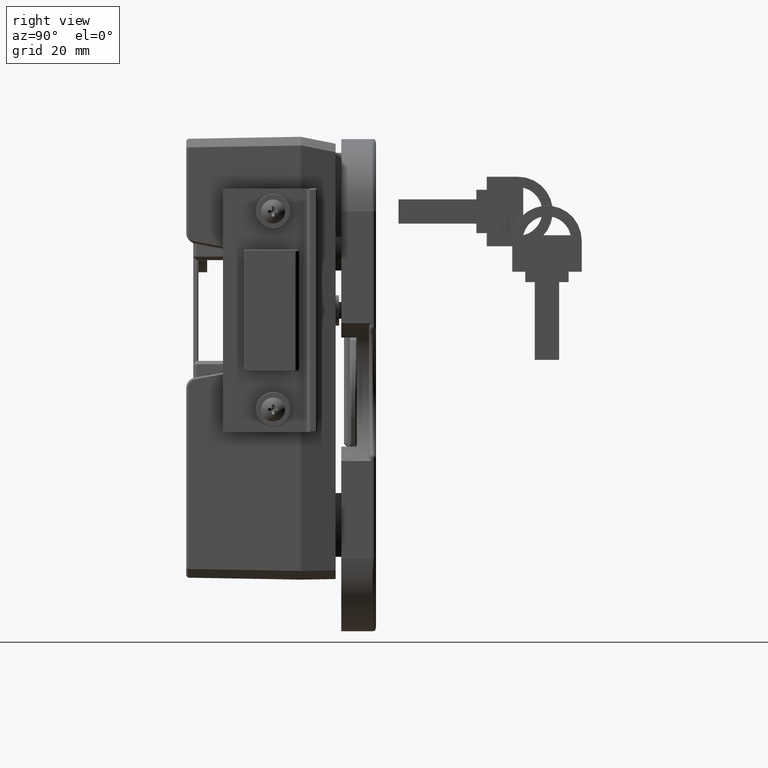
[diagram: clean part render]
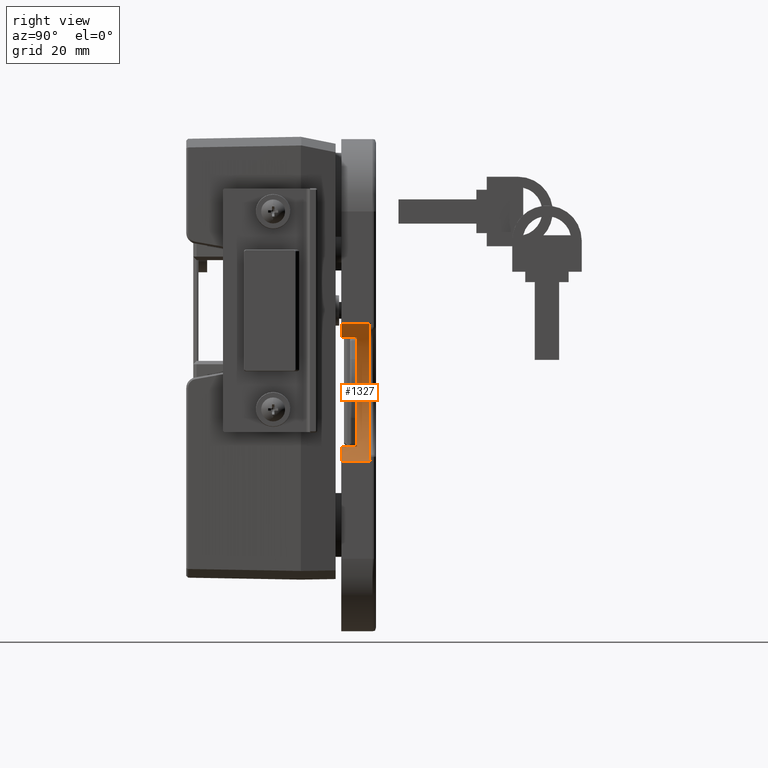
[diagram: same view with one face highlighted and labeled with its STEP entity id]
A machine part, right view. The second image highlights one B-rep face of the part: STEP entity #1327.
In plain terms, the highlighted cylindrical surface (partial cylindrical patch) has radius 30 mm, axis along (0, 1, -0).
Its self-contained STEP definition (entity closure, byte-faithful):
#1327=ADVANCED_FACE('',(#10927),#10926,.F.);
#10926=CYLINDRICAL_SURFACE('',#23646,3.00000000000E+01);
#10927=FACE_OUTER_BOUND('',#23647,.T.);
#23643=CARTESIAN_POINT('',(-4.35000000014E+01,-1.00000000000E+03,-5.19999999997E+01));
#23644=DIRECTION('',(-0.00000000000E+00,-1.00000000000E+00,-0.00000000000E+00));
#23645=DIRECTION('',(-0.00000000000E+00,0.00000000000E+00,-1.00000000000E+00));
#23646=AXIS2_PLACEMENT_3D('',#23643,#23644,#23645);
#23647=EDGE_LOOP('',(#33106,#33107,#33108,#33109,#33110,#33111,#33112,#33113,#33114,#33115,#33116,#33117));
#33106=ORIENTED_EDGE('',*,*,#39178,.F.);
#33107=ORIENTED_EDGE('',*,*,#39165,.F.);
#33108=ORIENTED_EDGE('',*,*,#39199,.F.);
#33109=ORIENTED_EDGE('',*,*,#39171,.F.);
#33110=ORIENTED_EDGE('',*,*,#39200,.F.);
#33111=ORIENTED_EDGE('',*,*,#39201,.F.);
#33112=ORIENTED_EDGE('',*,*,#39202,.F.);
#33113=ORIENTED_EDGE('',*,*,#39203,.T.);
#33114=ORIENTED_EDGE('',*,*,#39204,.T.);
#33115=ORIENTED_EDGE('',*,*,#39205,.T.);
#33116=ORIENTED_EDGE('',*,*,#39206,.T.);
#33117=ORIENTED_EDGE('',*,*,#39207,.F.);
#39165=EDGE_CURVE('',#56602,#56609,#56610,.T.);
#39171=EDGE_CURVE('',#56644,#56651,#56652,.T.);
#39178=EDGE_CURVE('',#56609,#56699,#56700,.T.);
#39199=EDGE_CURVE('',#56651,#56602,#56841,.T.);
#39200=EDGE_CURVE('',#56847,#56644,#56848,.T.);
#39201=EDGE_CURVE('',#56854,#56847,#56855,.T.);
#39202=EDGE_CURVE('',#56861,#56854,#56862,.T.);
#39203=EDGE_CURVE('',#56861,#56868,#56869,.T.);
#39204=EDGE_CURVE('',#56868,#56875,#56876,.T.);
#39205=EDGE_CURVE('',#56875,#56882,#56883,.T.);
#39206=EDGE_CURVE('',#56882,#56889,#56890,.T.);
#39207=EDGE_CURVE('',#56699,#56889,#56896,.T.);
#56602=VERTEX_POINT('',#78312);
#56609=VERTEX_POINT('',#78316);
#56610=CIRCLE('',#78320,3.00000000000E+01);
#56644=VERTEX_POINT('',#78339);
#56651=VERTEX_POINT('',#78343);
#56652=CIRCLE('',#78347,3.00000000000E+01);
#56699=VERTEX_POINT('',#78373);
#56700=LINE('',#78374,#78375);
#56841=CIRCLE('',#78476,3.00000000000E+01);
#56847=VERTEX_POINT('',#78477);
#56848=LINE('',#78478,#78479);
#56854=VERTEX_POINT('',#78481);
#56855=CIRCLE('',#78485,3.00000000000E+01);
#56861=VERTEX_POINT('',#78486);
#56862=LINE('',#78487,#78488);
#56868=VERTEX_POINT('',#78490);
#56869=(BOUNDED_CURVE() B_SPLINE_CURVE(3,(#78491,#78492,#78493,#78494,#78495,#78496,#78497,#78498,#78499,#78500),.UNSPECIFIED.,.F.,.F.) B_SPLINE_CURVE_WITH_KNOTS((4,2,2,2,4),(0.00000000000E+00,5.07627099700E-04,1.01525419940E-03,1.52288129910E-03,2.03050839880E-03),.UNSPECIFIED.) CURVE() GEOMETRIC_REPRESENTATION_ITEM() RATIONAL_B_SPLINE_CURVE((1.00000000000E+00,1.00000000000E+00,1.00000000000E+00,1.00000000000E+00,1.00000000000E+00,1.00000000000E+00,1.00000000000E+00,1.00000000000E+00,1.00000000000E+00,1.00000000000E+00)) REPRESENTATION_ITEM('') );
#56875=VERTEX_POINT('',#78501);
#56876=CIRCLE('',#78505,3.00000000000E+01);
#56882=VERTEX_POINT('',#78506);
#56883=(BOUNDED_CURVE() B_SPLINE_CURVE(3,(#78507,#78508,#78509,#78510,#78511,#78512,#78513,#78514,#78515,#78516),.UNSPECIFIED.,.F.,.F.) B_SPLINE_CURVE_WITH_KNOTS((4,2,2,2,4),(1.16549012997E-12,5.03770202492E-04,1.00754040382E-03,1.51131060514E-03,2.01508080647E-03),.UNSPECIFIED.) CURVE() GEOMETRIC_REPRESENTATION_ITEM() RATIONAL_B_SPLINE_CURVE((1.00000000000E+00,1.00000000000E+00,1.00000000000E+00,1.00000000000E+00,1.00000000000E+00,1.00000000000E+00,1.00000000000E+00,1.00000000000E+00,1.00000000000E+00,1.00000000000E+00)) REPRESENTATION_ITEM('') );
#56889=VERTEX_POINT('',#78517);
#56890=LINE('',#78518,#78519);
#56896=CIRCLE('',#78524,3.00000000000E+01);
#78312=CARTESIAN_POINT('',(-1.65043064822E+01,-4.50000000000E+00,-3.89144151286E+01));
#78316=CARTESIAN_POINT('',(-1.79361589535E+01,-4.50000000000E+00,-3.62999990163E+01));
#78317=CARTESIAN_POINT('',(-4.35000000014E+01,-4.50000000000E+00,-5.19999999997E+01));
#78318=DIRECTION('',(0.00000000000E+00,-1.00000000000E+00,-3.61861107505E-15));
#78319=DIRECTION('',(-0.00000000000E+00,-3.61861107505E-15,1.00000000000E+00));
#78320=AXIS2_PLACEMENT_3D('',#78317,#78318,#78319);
#78339=CARTESIAN_POINT('',(-1.79361577320E+01,-4.50000000000E+00,-6.76999989941E+01));
#78343=CARTESIAN_POINT('',(-1.67870855553E+01,-4.50000000000E+00,-6.56535783512E+01));
#78344=CARTESIAN_POINT('',(-4.35000000014E+01,-4.50000000000E+00,-5.19999999997E+01));
#78345=DIRECTION('',(0.00000000000E+00,-1.00000000000E+00,-3.61861107505E-15));
#78346=DIRECTION('',(-0.00000000000E+00,-3.61861107505E-15,1.00000000000E+00));
#78347=AXIS2_PLACEMENT_3D('',#78344,#78345,#78346);
#78373=CARTESIAN_POINT('',(-1.79361589535E+01,0.00000000000E+00,-3.62999990163E+01));
#78374=CARTESIAN_POINT('',(-1.79361589535E+01,-4.50000000000E+00,-3.62999990163E+01));
#78375=VECTOR('',#78376,4.50000000000E+00);
#78376=DIRECTION('',(0.00000000000E+00,1.00000000000E+00,0.00000000000E+00));
#78473=CARTESIAN_POINT('',(-4.35000000014E+01,-4.50000000000E+00,-5.19999999997E+01));
#78474=DIRECTION('',(0.00000000000E+00,-1.00000000000E+00,-3.61861107505E-15));
#78475=DIRECTION('',(-0.00000000000E+00,-3.61861107505E-15,1.00000000000E+00));
#78476=AXIS2_PLACEMENT_3D('',#78473,#78474,#78475);
#78477=CARTESIAN_POINT('',(-1.79361577320E+01,0.00000000000E+00,-6.76999989941E+01));
#78478=CARTESIAN_POINT('',(-1.79361577320E+01,0.00000000000E+00,-6.76999989941E+01));
#78479=VECTOR('',#78480,4.50000000000E+00);
#78480=DIRECTION('',(0.00000000000E+00,-1.00000000000E+00,0.00000000000E+00));
#78481=CARTESIAN_POINT('',(-2.10000000409E+01,0.00000000000E+00,-7.18431348775E+01));
#78482=CARTESIAN_POINT('',(-4.35000000014E+01,0.00000000000E+00,-5.19999999997E+01));
#78483=DIRECTION('',(0.00000000000E+00,-1.00000000000E+00,0.00000000000E+00));
#78484=DIRECTION('',(-0.00000000000E+00,-0.00000000000E+00,-1.00000000000E+00));
#78485=AXIS2_PLACEMENT_3D('',#78482,#78483,#78484);
#78486=CARTESIAN_POINT('',(-2.10000000398E+01,-8.99999999994E+00,-7.18431348775E+01));
#78487=CARTESIAN_POINT('',(-2.10000000409E+01,-8.99999999994E+00,-7.18431348775E+01));
#78488=VECTOR('',#78489,8.99999999994E+00);
#78489=DIRECTION('',(0.00000000000E+00,1.00000000000E+00,0.00000000000E+00));
#78490=CARTESIAN_POINT('',(-2.00000000404E+01,-7.99999999994E+00,-7.06480562479E+01));
#78491=CARTESIAN_POINT('',(-2.10000000398E+01,-8.99999999994E+00,-7.18431348775E+01));
#78492=CARTESIAN_POINT('',(-2.10000000398E+01,-8.82767905856E+00,-7.18431348775E+01));
#78493=CARTESIAN_POINT('',(-2.09541725789E+01,-8.66469738555E+00,-7.17913444691E+01));
#78494=CARTESIAN_POINT('',(-2.08123455594E+01,-8.39753188100E+00,-7.16286012232E+01));
#78495=CARTESIAN_POINT('',(-2.07209436211E+01,-8.29592255382E+00,-7.15227353997E+01));
#78496=CARTESIAN_POINT('',(-2.05264015508E+01,-8.14070601840E+00,-7.12934284485E+01));
#78497=CARTESIAN_POINT('',(-2.04225280102E+01,-8.08686055033E+00,-7.11691906155E+01));
#78498=CARTESIAN_POINT('',(-2.02117084724E+01,-8.01636740604E+00,-7.09125106747E+01));
#78499=CARTESIAN_POINT('',(-2.01059101232E+01,-7.99999999994E+00,-7.07815225410E+01));
#78500=CARTESIAN_POINT('',(-2.00000000398E+01,-7.99999999994E+00,-7.06480562472E+01));
#78501=CARTESIAN_POINT('',(-2.00000000406E+01,-7.99999999994E+00,-3.33519437514E+01));
#78502=CARTESIAN_POINT('',(-4.35000000014E+01,-7.99999999994E+00,-5.19999999997E+01));
#78503=DIRECTION('',(0.00000000000E+00,-1.00000000000E+00,0.00000000000E+00));
#78504=DIRECTION('',(-0.00000000000E+00,-0.00000000000E+00,-1.00000000000E+00));
#78505=AXIS2_PLACEMENT_3D('',#78502,#78503,#78504);
#78506=CARTESIAN_POINT('',(-2.10000000398E+01,-8.99999999994E+00,-3.21568651219E+01));
#78507=CARTESIAN_POINT('',(-2.00000000406E+01,-7.99999999994E+00,-3.33519437514E+01));
#78508=CARTESIAN_POINT('',(-2.01059298112E+01,-7.99999999994E+00,-3.32184526480E+01));
#78509=CARTESIAN_POINT('',(-2.02112292082E+01,-8.01639717211E+00,-3.30880939976E+01));
#78510=CARTESIAN_POINT('',(-2.04199207842E+01,-8.08580152425E+00,-3.28339629284E+01));
#78511=CARTESIAN_POINT('',(-2.05249888616E+01,-8.13980916216E+00,-3.27082502540E+01));
#78512=CARTESIAN_POINT('',(-2.07201107086E+01,-8.29503037995E+00,-3.24782329452E+01));
#78513=CARTESIAN_POINT('',(-2.08120872525E+01,-8.39750389212E+00,-3.23717007569E+01));
#78514=CARTESIAN_POINT('',(-2.09530907575E+01,-8.66220526219E+00,-3.22098913691E+01));
#78515=CARTESIAN_POINT('',(-2.10000000399E+01,-8.82756336604E+00,-3.21568651231E+01));
#78516=CARTESIAN_POINT('',(-2.10000000398E+01,-9.00000000021E+00,-3.21568651232E+01));
#78517=CARTESIAN_POINT('',(-2.10000000398E+01,0.00000000000E+00,-3.21568651219E+01));
#78518=CARTESIAN_POINT('',(-2.10000000409E+01,-8.99999999994E+00,-3.21568651219E+01));
#78519=VECTOR('',#78520,8.99999999994E+00);
#78520=DIRECTION('',(0.00000000000E+00,1.00000000000E+00,0.00000000000E+00));
#78521=CARTESIAN_POINT('',(-4.35000000014E+01,0.00000000000E+00,-5.19999999997E+01));
#78522=DIRECTION('',(0.00000000000E+00,-1.00000000000E+00,0.00000000000E+00));
#78523=DIRECTION('',(-0.00000000000E+00,-0.00000000000E+00,-1.00000000000E+00));
#78524=AXIS2_PLACEMENT_3D('',#78521,#78522,#78523);